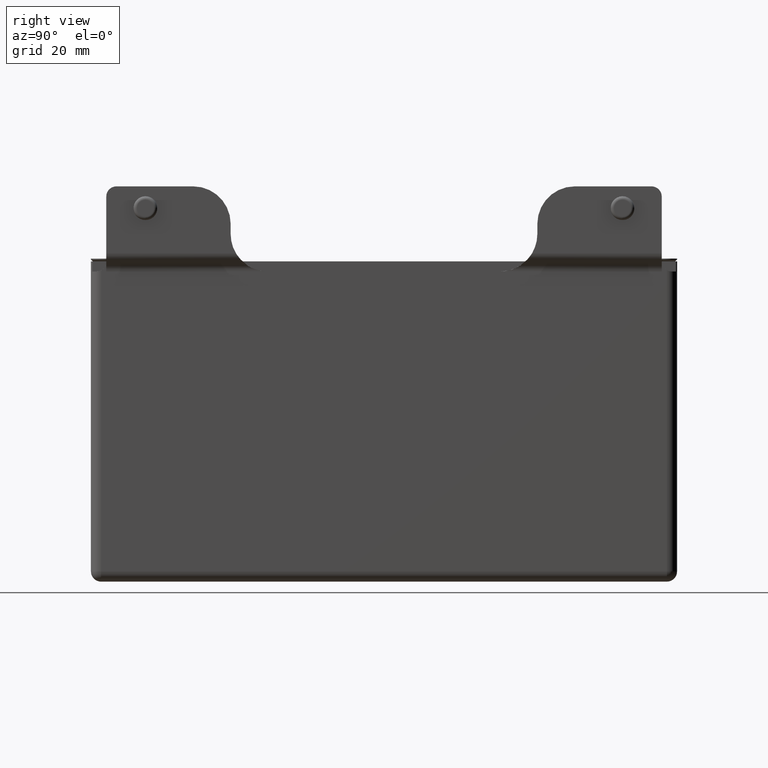
[diagram: clean part render]
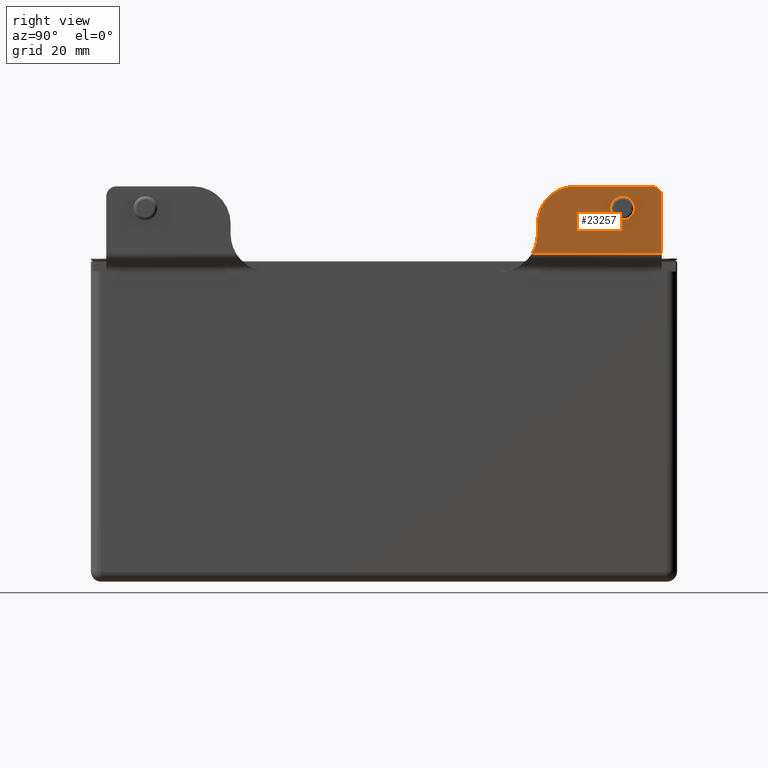
[diagram: same view with one face highlighted and labeled with its STEP entity id]
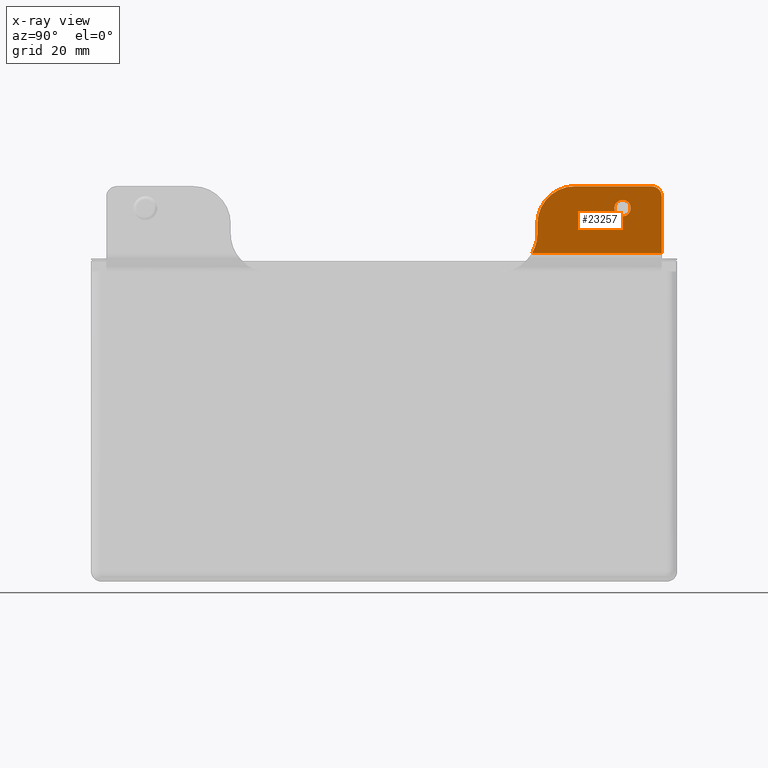
[diagram: x-ray of the same camera — body ghosted, the highlighted face saturated]
A machine part, right view. The second image highlights one B-rep face of the part: STEP entity #23257.
The next image is the same camera in x-ray: the body ghosted, the highlighted face saturated — about 0% of this face is hidden behind the body in this view.
In plain terms, the highlighted planar face has unit normal (1, 0, -0).
Its self-contained STEP definition (entity closure, byte-faithful):
#375 = VECTOR ( 'NONE', #20983, 1000.000000000000000 ) ;
#781 = EDGE_CURVE ( 'NONE', #10663, #17134, #13665, .T. ) ;
#787 = DIRECTION ( 'NONE',  ( -1.000000000000000000, -0.000000000000000000, 3.528249980268673989E-16 ) ) ;
#1322 = CARTESIAN_POINT ( 'NONE',  ( 27.74999999999999645, 81.50000000000000000, 70.50000000000000000 ) ) ;
#2994 = CARTESIAN_POINT ( 'NONE',  ( 27.74999999999999289, 45.00000000000000000, 56.49999999999999289 ) ) ;
#4568 = EDGE_CURVE ( 'NONE', #9336, #27269, #20472, .T. ) ;
#4684 = VECTOR ( 'NONE', #7049, 1000.000000000000000 ) ;
#5790 = AXIS2_PLACEMENT_3D ( 'NONE', #11930, #787, #20311 ) ;
#6357 = CARTESIAN_POINT ( 'NONE',  ( 27.74999999999997158, 81.50000000000000000, -9.790893695245560718E-15 ) ) ;
#6921 = CARTESIAN_POINT ( 'NONE',  ( 27.74999999999999645, 70.00000000000000000, 66.49999999999998579 ) ) ;
#7049 = DIRECTION ( 'NONE',  ( 3.528249980268673989E-16, 0.000000000000000000, 1.000000000000000000 ) ) ;
#7775 = FACE_OUTER_BOUND ( 'NONE', #14505, .T. ) ;
#8214 = CARTESIAN_POINT ( 'NONE',  ( 27.74999999999998934, 81.50000000000000000, 50.83332688241428343 ) ) ;
#8425 = DIRECTION ( 'NONE',  ( 0.000000000000000000, 0.000000000000000000, -1.000000000000000000 ) ) ;
#8846 = ORIENTED_EDGE ( 'NONE', *, *, #16708, .T. ) ;
#9155 = VERTEX_POINT ( 'NONE', #31697 ) ;
#9336 = VERTEX_POINT ( 'NONE', #32177 ) ;
#9428 = EDGE_CURVE ( 'NONE', #17560, #19832, #26966, .T. ) ;
#9969 = DIRECTION ( 'NONE',  ( -1.000000000000000000, 0.000000000000000000, 0.000000000000000000 ) ) ;
#10663 = VERTEX_POINT ( 'NONE', #8214 ) ;
#11930 = CARTESIAN_POINT ( 'NONE',  ( 27.74999999999998224, 34.00000000000000000, 56.49999999999999289 ) ) ;
#12647 = DIRECTION ( 'NONE',  ( -0.000000000000000000, -1.000000000000000000, -0.000000000000000000 ) ) ;
#12977 = AXIS2_PLACEMENT_3D ( 'NONE', #28074, #25491, #8425 ) ;
#13222 = CIRCLE ( 'NONE', #30943, 2.399999999999999467 ) ;
#13596 = ORIENTED_EDGE ( 'NONE', *, *, #4568, .T. ) ;
#13665 = LINE ( 'NONE', #35028, #31094 ) ;
#13774 = DIRECTION ( 'NONE',  ( -3.528249980268673989E-16, 0.000000000000000000, -1.000000000000000000 ) ) ;
#13925 = EDGE_CURVE ( 'NONE', #27269, #19832, #31096, .T. ) ;
#14079 = EDGE_CURVE ( 'NONE', #9155, #9336, #14132, .T. ) ;
#14132 = CIRCLE ( 'NONE', #12977, 3.000000000000002665 ) ;
#14334 = FACE_BOUND ( 'NONE', #25461, .T. ) ;
#14505 = EDGE_LOOP ( 'NONE', ( #13596, #21014, #31648, #14705, #28893, #8846, #33463 ) ) ;
#14574 = EDGE_CURVE ( 'NONE', #24625, #24625, #13222, .T. ) ;
#14705 = ORIENTED_EDGE ( 'NONE', *, *, #22439, .T. ) ;
#15185 = DIRECTION ( 'NONE',  ( -3.154042683594195614E-16, 0.000000000000000000, -1.000000000000000000 ) ) ;
#15696 = CARTESIAN_POINT ( 'NONE',  ( 27.74999999999999645, 55.99999999999999289, 59.50000000000000000 ) ) ;
#16215 = CARTESIAN_POINT ( 'NONE',  ( 27.74999999999997158, 81.50000000000000000, -9.790893695245560718E-15 ) ) ;
#16708 = EDGE_CURVE ( 'NONE', #10663, #9155, #34109, .T. ) ;
#17134 = VERTEX_POINT ( 'NONE', #34357 ) ;
#17560 = VERTEX_POINT ( 'NONE', #2994 ) ;
#19832 = VERTEX_POINT ( 'NONE', #36213 ) ;
#19834 = AXIS2_PLACEMENT_3D ( 'NONE', #16215, #24491, #13774 ) ;
#20311 = DIRECTION ( 'NONE',  ( -3.154042683594195614E-16, 0.000000000000000000, -1.000000000000000000 ) ) ;
#20472 = LINE ( 'NONE', #1322, #375 ) ;
#20983 = DIRECTION ( 'NONE',  ( -0.000000000000000000, -1.000000000000000000, -0.000000000000000000 ) ) ;
#21014 = ORIENTED_EDGE ( 'NONE', *, *, #13925, .T. ) ;
#21042 = DIRECTION ( 'NONE',  ( 0.000000000000000000, 0.000000000000000000, 1.000000000000000000 ) ) ;
#21659 = CARTESIAN_POINT ( 'NONE',  ( 27.74999999999999645, 55.99999999999999289, 70.50000000000000000 ) ) ;
#22439 = EDGE_CURVE ( 'NONE', #17560, #17134, #34835, .T. ) ;
#23257 = ADVANCED_FACE ( 'NONE', ( #7775, #14334 ), #33245, .T. ) ;
#24491 = DIRECTION ( 'NONE',  ( 1.000000000000000000, 0.000000000000000000, -3.528249980268673989E-16 ) ) ;
#24625 = VERTEX_POINT ( 'NONE', #6921 ) ;
#25351 = AXIS2_PLACEMENT_3D ( 'NONE', #15696, #25900, #15185 ) ;
#25461 = EDGE_LOOP ( 'NONE', ( #31353 ) ) ;
#25491 = DIRECTION ( 'NONE',  ( 1.000000000000000000, 0.000000000000000000, -3.528249980268673989E-16 ) ) ;
#25900 = DIRECTION ( 'NONE',  ( 1.000000000000000000, 0.000000000000000000, -3.528249980268673989E-16 ) ) ;
#26260 = VECTOR ( 'NONE', #33908, 1000.000000000000000 ) ;
#26966 = LINE ( 'NONE', #34740, #4684 ) ;
#27269 = VERTEX_POINT ( 'NONE', #21659 ) ;
#28074 = CARTESIAN_POINT ( 'NONE',  ( 27.74999999999999645, 78.50000000000000000, 67.50000000000000000 ) ) ;
#28893 = ORIENTED_EDGE ( 'NONE', *, *, #781, .F. ) ;
#30943 = AXIS2_PLACEMENT_3D ( 'NONE', #34702, #9969, #21042 ) ;
#31094 = VECTOR ( 'NONE', #12647, 1000.000000000000000 ) ;
#31096 = CIRCLE ( 'NONE', #25351, 10.99999999999999645 ) ;
#31353 = ORIENTED_EDGE ( 'NONE', *, *, #14574, .T. ) ;
#31648 = ORIENTED_EDGE ( 'NONE', *, *, #9428, .F. ) ;
#31697 = CARTESIAN_POINT ( 'NONE',  ( 27.74999999999999645, 81.50000000000000000, 67.50000000000000000 ) ) ;
#32177 = CARTESIAN_POINT ( 'NONE',  ( 27.74999999999999645, 78.50000000000000000, 70.50000000000000000 ) ) ;
#33245 = PLANE ( 'NONE',  #19834 ) ;
#33463 = ORIENTED_EDGE ( 'NONE', *, *, #14079, .T. ) ;
#33908 = DIRECTION ( 'NONE',  ( 3.528249980268673989E-16, 0.000000000000000000, 1.000000000000000000 ) ) ;
#34109 = LINE ( 'NONE', #6357, #26260 ) ;
#34357 = CARTESIAN_POINT ( 'NONE',  ( 27.74999999999998934, 43.42808653855232137, 50.83332688241428343 ) ) ;
#34702 = CARTESIAN_POINT ( 'NONE',  ( 27.74999999999999645, 70.00000000000000000, 64.09999999999999432 ) ) ;
#34740 = CARTESIAN_POINT ( 'NONE',  ( 27.74999999999997158, 45.00000000000000000, -9.790893695245560718E-15 ) ) ;
#34835 = CIRCLE ( 'NONE', #5790, 10.99999999999999645 ) ;
#35028 = CARTESIAN_POINT ( 'NONE',  ( 27.74999999999998934, 81.50000000000000000, 50.83332688241428343 ) ) ;
#36213 = CARTESIAN_POINT ( 'NONE',  ( 27.74999999999999289, 45.00000000000000000, 59.50000000000000000 ) ) ;